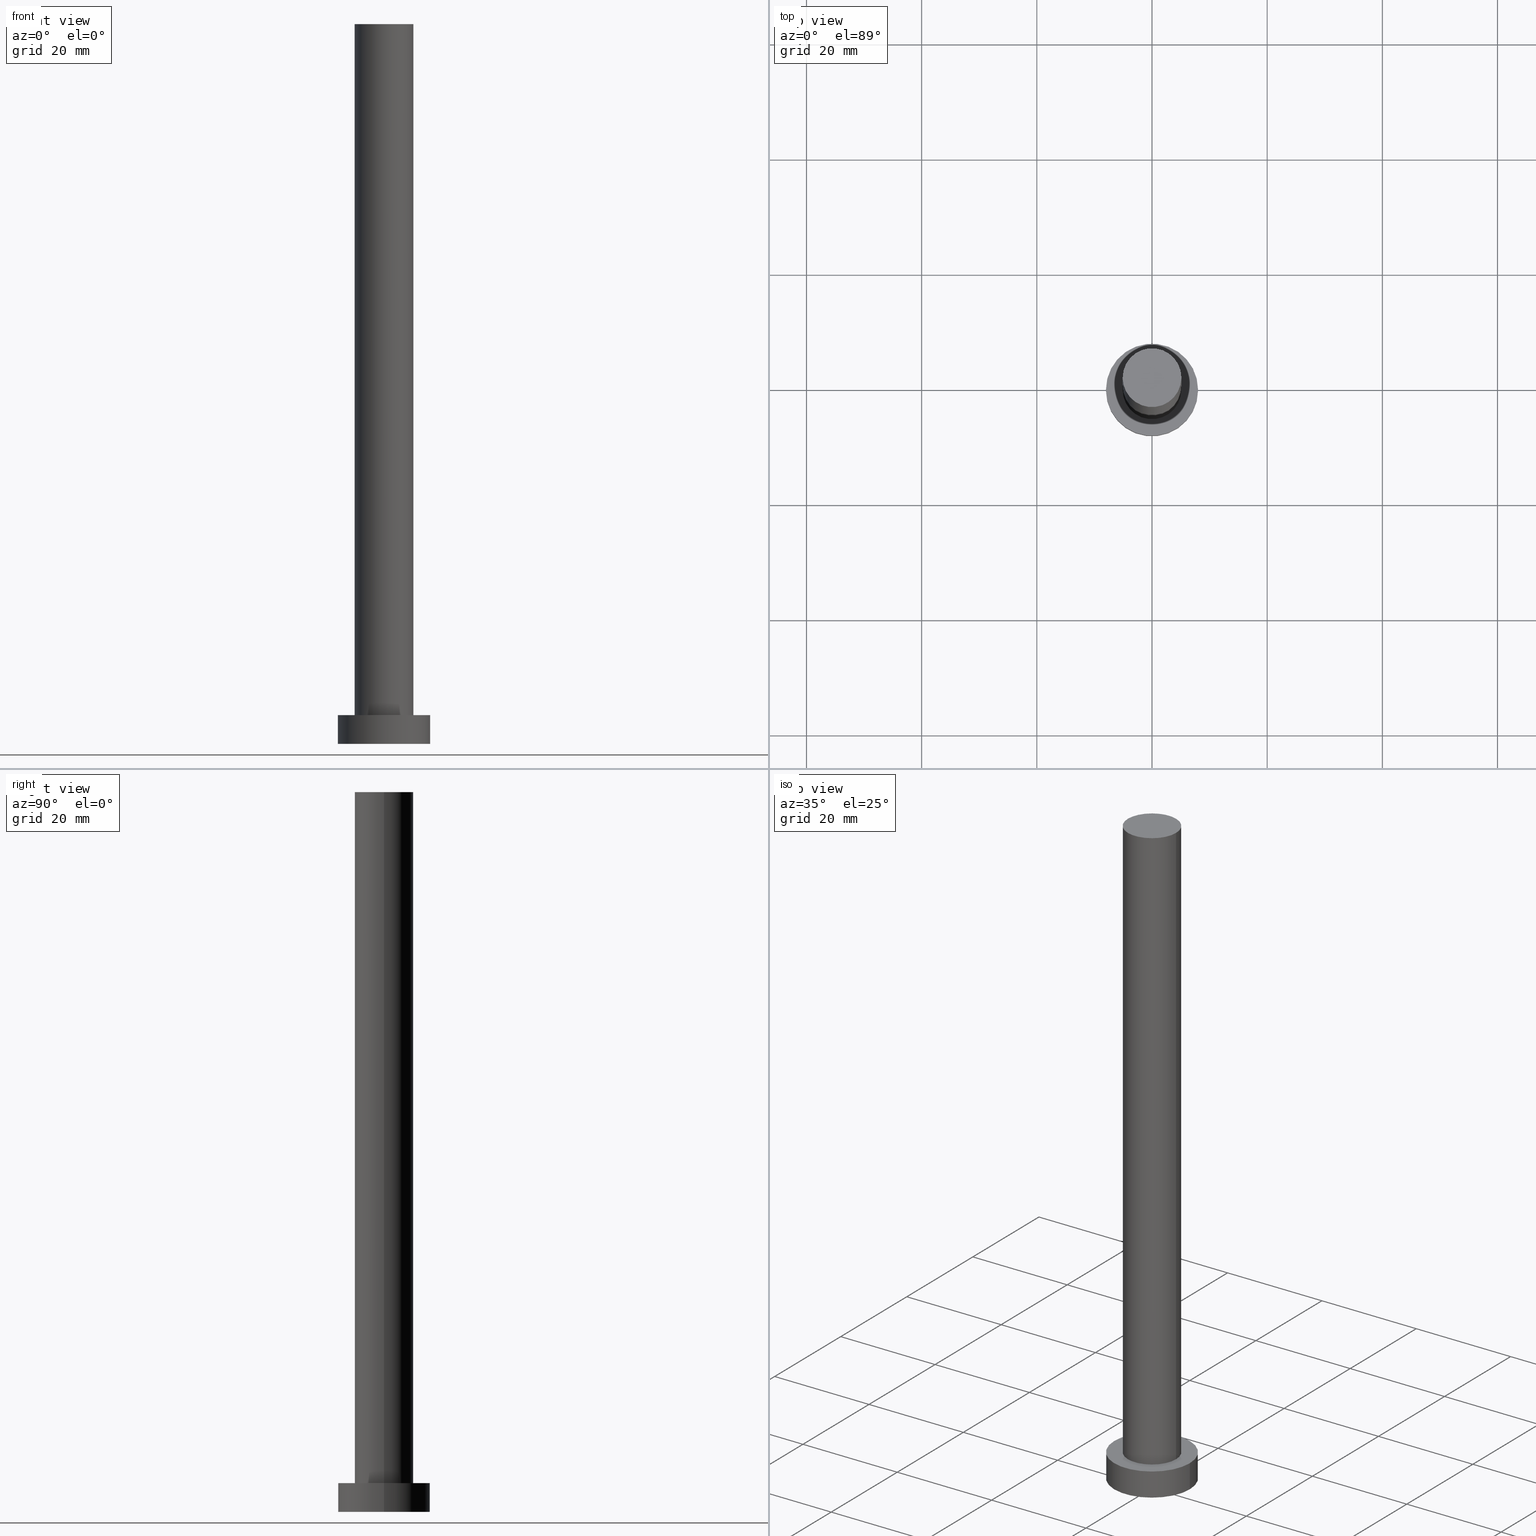
[diagram: canonical four-view strip — front | top / right | iso, engineering-drawing reading convention]
A machine part, canonical four-view strip (front | top / right | iso — engineering-drawing reading convention). The complete STEP part file that produces these views, byte-faithful:
ISO-10303-21;
HEADER;
FILE_DESCRIPTION (( 'STEP AP203' ),
    '1' );
FILE_NAME ('c4af.STEP',
    '2023-02-12T10:59:35',
    ( '' ),
    ( '' ),
    'SwSTEP 2.0',
    'SolidWorks 2019',
    '' );
FILE_SCHEMA (( 'CONFIG_CONTROL_DESIGN' ));
ENDSEC;

DATA;
#1 = SECURITY_CLASSIFICATION_LEVEL ( 'unclassified' ) ;
#2 = ORIENTED_EDGE ( 'NONE', *, *, #114, .T. ) ;
#3 = DIRECTION ( 'NONE',  ( 0.000000000000000000, 0.000000000000000000, 1.000000000000000000 ) ) ;
#4 = FACE_OUTER_BOUND ( 'NONE', #227, .T. ) ;
#5 = CALENDAR_DATE ( 2023, 12, 2 ) ;
#6 = CARTESIAN_POINT ( 'NONE',  ( 0.000000000000000000, 0.000000000000000000, 5.000000000000000000 ) ) ;
#7 = DIRECTION ( 'NONE',  ( -0.000000000000000000, -0.000000000000000000, -1.000000000000000000 ) ) ;
#8 = DIRECTION ( 'NONE',  ( 0.000000000000000000, 0.000000000000000000, 1.000000000000000000 ) ) ;
#9 = APPROVAL ( #168, 'NEUR�EN�' ) ;
#10 = DIRECTION ( 'NONE',  ( 1.000000000000000000, 0.000000000000000000, 0.000000000000000000 ) ) ;
#11 = FACE_BOUND ( 'NONE', #204, .T. ) ;
#12 = CIRCLE ( 'NONE', #103, 5.099999999999999645 ) ;
#13 = APPROVAL_STATUS ( 'not_yet_approved' ) ;
#14 = DATE_TIME_ROLE ( 'creation_date' ) ;
#15 = CARTESIAN_POINT ( 'NONE',  ( 0.000000000000000000, 0.000000000000000000, 5.000000000000000000 ) ) ;
#16 = PERSON_AND_ORGANIZATION ( #46, #248 ) ;
#17 = ORIENTED_EDGE ( 'NONE', *, *, #170, .T. ) ;
#18 = CC_DESIGN_PERSON_AND_ORGANIZATION_ASSIGNMENT ( #55, #217, ( #42 ) ) ;
#19 = DATE_AND_TIME ( #5, #252 ) ;
#20 =( GEOMETRIC_REPRESENTATION_CONTEXT ( 3 ) GLOBAL_UNCERTAINTY_ASSIGNED_CONTEXT ( ( #125 ) ) GLOBAL_UNIT_ASSIGNED_CONTEXT ( ( #235, #52, #112 ) ) REPRESENTATION_CONTEXT ( 'NONE', 'WORKASPACE' ) );
#21 = CARTESIAN_POINT ( 'NONE',  ( -8.000000000000000000, 0.000000000000000000, 0.000000000000000000 ) ) ;
#22 = VERTEX_POINT ( 'NONE', #21 ) ;
#23 = DIRECTION ( 'NONE',  ( 1.000000000000000000, 0.000000000000000000, 0.000000000000000000 ) ) ;
#24 = ADVANCED_FACE ( 'NONE', ( #4 ), #191, .T. ) ;
#25 = APPROVAL_PERSON_ORGANIZATION ( #250, #101, #74 ) ;
#26 = DIRECTION ( 'NONE',  ( -1.000000000000000000, 0.000000000000000000, 0.000000000000000000 ) ) ;
#27 = FACE_OUTER_BOUND ( 'NONE', #184, .T. ) ;
#28 = CC_DESIGN_PERSON_AND_ORGANIZATION_ASSIGNMENT ( #34, #116, ( #226 ) ) ;
#29 = CIRCLE ( 'NONE', #167, 8.000000000000000000 ) ;
#30 = APPLICATION_PROTOCOL_DEFINITION ( 'international standard', 'config_control_design', 1994, #241 ) ;
#31 = DIRECTION ( 'NONE',  ( 0.000000000000000000, 0.000000000000000000, 1.000000000000000000 ) ) ;
#32 = CARTESIAN_POINT ( 'NONE',  ( -8.000000000000000000, 0.000000000000000000, 5.000000000000000000 ) ) ;
#33 = CIRCLE ( 'NONE', #197, 5.099999999999999645 ) ;
#34 = PERSON_AND_ORGANIZATION ( #46, #248 ) ;
#35 = PERSON_AND_ORGANIZATION ( #46, #248 ) ;
#36 = VERTEX_POINT ( 'NONE', #244 ) ;
#37 = VECTOR ( 'NONE', #143, 1000.000000000000000 ) ;
#38 = PERSON_AND_ORGANIZATION ( #46, #248 ) ;
#39 = COORDINATED_UNIVERSAL_TIME_OFFSET ( 1, 0, .AHEAD. ) ;
#40 = VERTEX_POINT ( 'NONE', #89 ) ;
#41 = MANIFOLD_SOLID_BREP ( 'P�idat vysunut�m3', #69 ) ;
#42 = PRODUCT_DEFINITION ( 'NEZN�M�', '', #141, #171 ) ;
#43 = CARTESIAN_POINT ( 'NONE',  ( -5.099999999999999645, 0.000000000000000000, 125.0000000000000000 ) ) ;
#44 = DIRECTION ( 'NONE',  ( -1.000000000000000000, 0.000000000000000000, 0.000000000000000000 ) ) ;
#45 = ORIENTED_EDGE ( 'NONE', *, *, #212, .T. ) ;
#46 = PERSON ( 'NEUR�EN�', 'NEUR�EN�', 'NEUR�EN�', ('NEUR�EN�'), ('NEUR�EN�'), ('NEUR�EN�') ) ;
#47 = VERTEX_POINT ( 'NONE', #247 ) ;
#48 = APPLICATION_CONTEXT ( 'configuration controlled 3d designs of mechanical parts and assemblies' ) ;
#49 = DIRECTION ( 'NONE',  ( 0.000000000000000000, 0.000000000000000000, 1.000000000000000000 ) ) ;
#50 = CYLINDRICAL_SURFACE ( 'NONE', #139, 5.099999999999999645 ) ;
#51 = DIRECTION ( 'NONE',  ( 1.000000000000000000, 0.000000000000000000, 0.000000000000000000 ) ) ;
#52 =( NAMED_UNIT ( * ) PLANE_ANGLE_UNIT ( ) SI_UNIT ( $, .RADIAN. ) );
#53 = DIRECTION ( 'NONE',  ( 0.000000000000000000, 0.000000000000000000, 1.000000000000000000 ) ) ;
#54 = CC_DESIGN_PERSON_AND_ORGANIZATION_ASSIGNMENT ( #16, #81, ( #141 ) ) ;
#55 = PERSON_AND_ORGANIZATION ( #46, #248 ) ;
#56 = AXIS2_PLACEMENT_3D ( 'NONE', #160, #61, #23 ) ;
#57 = VECTOR ( 'NONE', #199, 1000.000000000000000 ) ;
#58 = ORIENTED_EDGE ( 'NONE', *, *, #86, .T. ) ;
#59 = CC_DESIGN_APPROVAL ( #146, ( #42 ) ) ;
#60 = PERSON_AND_ORGANIZATION_ROLE ( 'classification_officer' ) ;
#61 = DIRECTION ( 'NONE',  ( 0.000000000000000000, 0.000000000000000000, 1.000000000000000000 ) ) ;
#62 = ORIENTED_EDGE ( 'NONE', *, *, #80, .T. ) ;
#63 = ORIENTED_EDGE ( 'NONE', *, *, #190, .F. ) ;
#64 = AXIS2_PLACEMENT_3D ( 'NONE', #107, #240, #44 ) ;
#65 = DIRECTION ( 'NONE',  ( 1.000000000000000000, 0.000000000000000000, 0.000000000000000000 ) ) ;
#66 = DIRECTION ( 'NONE',  ( -0.000000000000000000, -0.000000000000000000, -1.000000000000000000 ) ) ;
#67 = FACE_OUTER_BOUND ( 'NONE', #140, .T. ) ;
#68 = DIRECTION ( 'NONE',  ( -1.000000000000000000, 0.000000000000000000, 0.000000000000000000 ) ) ;
#69 = CLOSED_SHELL ( 'NONE', ( #72, #157, #195, #249, #97, #90, #24 ) ) ;
#70 = EDGE_CURVE ( 'NONE', #36, #22, #203, .T. ) ;
#71 = CARTESIAN_POINT ( 'NONE',  ( 8.000000000000000000, 9.797174393178825657E-16, 5.000000000000000000 ) ) ;
#72 = ADVANCED_FACE ( 'NONE', ( #67 ), #50, .T. ) ;
#73 = FACE_OUTER_BOUND ( 'NONE', #220, .T. ) ;
#74 = APPROVAL_ROLE ( '' ) ;
#75 = CC_DESIGN_PERSON_AND_ORGANIZATION_ASSIGNMENT ( #225, #60, ( #243 ) ) ;
#76 = DATE_AND_TIME ( #181, #131 ) ;
#77 = ORIENTED_EDGE ( 'NONE', *, *, #212, .F. ) ;
#78 = DIRECTION ( 'NONE',  ( 1.000000000000000000, 0.000000000000000000, 0.000000000000000000 ) ) ;
#79 = ORIENTED_EDGE ( 'NONE', *, *, #190, .T. ) ;
#80 = EDGE_CURVE ( 'NONE', #239, #47, #29, .T. ) ;
#81 = PERSON_AND_ORGANIZATION_ROLE ( 'design_supplier' ) ;
#82 = VERTEX_POINT ( 'NONE', #132 ) ;
#83 = CYLINDRICAL_SURFACE ( 'NONE', #64, 5.099999999999999645 ) ;
#84 = LINE ( 'NONE', #124, #57 ) ;
#85 = FACE_OUTER_BOUND ( 'NONE', #128, .T. ) ;
#86 = EDGE_CURVE ( 'NONE', #156, #82, #163, .T. ) ;
#87 = ORIENTED_EDGE ( 'NONE', *, *, #142, .F. ) ;
#88 = FACE_OUTER_BOUND ( 'NONE', #208, .T. ) ;
#89 = CARTESIAN_POINT ( 'NONE',  ( 5.099999999999999645, 6.245698675651500839E-16, 125.0000000000000000 ) ) ;
#90 = ADVANCED_FACE ( 'NONE', ( #27 ), #83, .T. ) ;
#91 = CARTESIAN_POINT ( 'NONE',  ( 0.000000000000000000, 0.000000000000000000, 5.000000000000000000 ) ) ;
#92 = CIRCLE ( 'NONE', #178, 8.000000000000000000 ) ;
#93 = DIRECTION ( 'NONE',  ( 1.000000000000000000, 0.000000000000000000, -0.000000000000000000 ) ) ;
#94 = DIRECTION ( 'NONE',  ( 0.000000000000000000, 0.000000000000000000, 1.000000000000000000 ) ) ;
#95 = EDGE_CURVE ( 'NONE', #40, #127, #207, .T. ) ;
#96 = CC_DESIGN_APPROVAL ( #101, ( #141 ) ) ;
#97 = ADVANCED_FACE ( 'NONE', ( #73 ), #216, .F. ) ;
#98 = APPROVAL_ROLE ( '' ) ;
#99 = VECTOR ( 'NONE', #117, 1000.000000000000000 ) ;
#100 = CARTESIAN_POINT ( 'NONE',  ( 5.099999999999999645, 6.245698675651500839E-16, 5.000000000000000000 ) ) ;
#101 = APPROVAL ( #155, 'NEUR�EN�' ) ;
#102 = EDGE_LOOP ( 'NONE', ( #253, #62 ) ) ;
#103 = AXIS2_PLACEMENT_3D ( 'NONE', #233, #94, #78 ) ;
#104 = AXIS2_PLACEMENT_3D ( 'NONE', #206, #66, #192 ) ;
#105 = DATE_TIME_ROLE ( 'classification_date' ) ;
#106 = DIRECTION ( 'NONE',  ( 0.000000000000000000, 0.000000000000000000, 1.000000000000000000 ) ) ;
#107 = CARTESIAN_POINT ( 'NONE',  ( 0.000000000000000000, 0.000000000000000000, 125.0000000000000000 ) ) ;
#108 = AXIS2_PLACEMENT_3D ( 'NONE', #148, #8, #145 ) ;
#109 = PRODUCT_DEFINITION_SHAPE ( 'NONE', 'NONE',  #42 ) ;
#110 = CIRCLE ( 'NONE', #115, 5.099999999999999645 ) ;
#111 = DIRECTION ( 'NONE',  ( 0.000000000000000000, 0.000000000000000000, 1.000000000000000000 ) ) ;
#112 =( NAMED_UNIT ( * ) SI_UNIT ( $, .STERADIAN. ) SOLID_ANGLE_UNIT ( ) );
#113 = CARTESIAN_POINT ( 'NONE',  ( 0.000000000000000000, 0.000000000000000000, 0.000000000000000000 ) ) ;
#114 = EDGE_CURVE ( 'NONE', #156, #40, #12, .T. ) ;
#115 = AXIS2_PLACEMENT_3D ( 'NONE', #198, #31, #153 ) ;
#116 = PERSON_AND_ORGANIZATION_ROLE ( 'design_owner' ) ;
#117 = DIRECTION ( 'NONE',  ( -0.000000000000000000, -0.000000000000000000, -1.000000000000000000 ) ) ;
#118 = PERSON_AND_ORGANIZATION_ROLE ( 'creator' ) ;
#119 = ORIENTED_EDGE ( 'NONE', *, *, #170, .F. ) ;
#120 = COORDINATED_UNIVERSAL_TIME_OFFSET ( 1, 0, .AHEAD. ) ;
#121 = COORDINATED_UNIVERSAL_TIME_OFFSET ( 1, 0, .AHEAD. ) ;
#122 = CC_DESIGN_SECURITY_CLASSIFICATION ( #243, ( #141 ) ) ;
#123 = ORIENTED_EDGE ( 'NONE', *, *, #254, .T. ) ;
#124 = CARTESIAN_POINT ( 'NONE',  ( 8.000000000000000000, 9.797174393178825657E-16, 5.000000000000000000 ) ) ;
#125 = UNCERTAINTY_MEASURE_WITH_UNIT (LENGTH_MEASURE( 1.000000000000000082E-05 ), #235, 'distance_accuracy_value', 'NONE');
#126 = COORDINATED_UNIVERSAL_TIME_OFFSET ( 1, 0, .AHEAD. ) ;
#127 = VERTEX_POINT ( 'NONE', #100 ) ;
#128 = EDGE_LOOP ( 'NONE', ( #169, #87, #144, #218 ) ) ;
#129 = ADVANCED_BREP_SHAPE_REPRESENTATION ( 'c4af', ( #41, #175 ), #20 ) ;
#130 = CARTESIAN_POINT ( 'NONE',  ( 0.000000000000000000, 0.000000000000000000, 125.0000000000000000 ) ) ;
#131 = LOCAL_TIME ( 11, 59, 34.00000000000000000, #120 ) ;
#132 = CARTESIAN_POINT ( 'NONE',  ( -5.099999999999999645, 0.000000000000000000, 5.000000000000000000 ) ) ;
#133 = APPROVAL_PERSON_ORGANIZATION ( #223, #9, #164 ) ;
#134 = DIRECTION ( 'NONE',  ( 1.000000000000000000, 0.000000000000000000, 0.000000000000000000 ) ) ;
#135 = LINE ( 'NONE', #32, #99 ) ;
#136 = PLANE ( 'NONE',  #205 ) ;
#137 = APPROVAL_DATE_TIME ( #236, #101 ) ;
#138 = EDGE_CURVE ( 'NONE', #22, #36, #229, .T. ) ;
#139 = AXIS2_PLACEMENT_3D ( 'NONE', #130, #211, #26 ) ;
#140 = EDGE_LOOP ( 'NONE', ( #119, #224, #79, #172 ) ) ;
#141 = PRODUCT_DEFINITION_FORMATION_WITH_SPECIFIED_SOURCE ( 'LIBOVOLN�', '', #226, .NOT_KNOWN. ) ;
#142 = EDGE_CURVE ( 'NONE', #47, #239, #92, .T. ) ;
#143 = DIRECTION ( 'NONE',  ( -0.000000000000000000, -0.000000000000000000, -1.000000000000000000 ) ) ;
#144 = ORIENTED_EDGE ( 'NONE', *, *, #234, .T. ) ;
#145 = DIRECTION ( 'NONE',  ( 1.000000000000000000, 0.000000000000000000, -0.000000000000000000 ) ) ;
#146 = APPROVAL ( #13, 'NEUR�EN�' ) ;
#147 = CYLINDRICAL_SURFACE ( 'NONE', #104, 8.000000000000000000 ) ;
#148 = CARTESIAN_POINT ( 'NONE',  ( 0.000000000000000000, 0.000000000000000000, 125.0000000000000000 ) ) ;
#149 = SHAPE_DEFINITION_REPRESENTATION ( #109, #129 ) ;
#150 = CARTESIAN_POINT ( 'NONE',  ( 0.000000000000000000, 0.000000000000000000, 0.000000000000000000 ) ) ;
#151 = AXIS2_PLACEMENT_3D ( 'NONE', #150, #111, #242 ) ;
#152 = CARTESIAN_POINT ( 'NONE',  ( 0.000000000000000000, 0.000000000000000000, 0.000000000000000000 ) ) ;
#153 = DIRECTION ( 'NONE',  ( 1.000000000000000000, 0.000000000000000000, 0.000000000000000000 ) ) ;
#154 = CALENDAR_DATE ( 2023, 12, 2 ) ;
#155 = APPROVAL_STATUS ( 'not_yet_approved' ) ;
#156 = VERTEX_POINT ( 'NONE', #43 ) ;
#157 = ADVANCED_FACE ( 'NONE', ( #88 ), #147, .T. ) ;
#158 = COORDINATED_UNIVERSAL_TIME_OFFSET ( 1, 0, .AHEAD. ) ;
#159 = APPROVAL_DATE_TIME ( #76, #146 ) ;
#160 = CARTESIAN_POINT ( 'NONE',  ( 0.000000000000000000, 0.000000000000000000, 0.000000000000000000 ) ) ;
#161 = AXIS2_PLACEMENT_3D ( 'NONE', #91, #246, #68 ) ;
#162 = ORIENTED_EDGE ( 'NONE', *, *, #70, .F. ) ;
#163 = LINE ( 'NONE', #213, #37 ) ;
#164 = APPROVAL_ROLE ( '' ) ;
#165 = CYLINDRICAL_SURFACE ( 'NONE', #161, 8.000000000000000000 ) ;
#166 = ORIENTED_EDGE ( 'NONE', *, *, #138, .F. ) ;
#167 = AXIS2_PLACEMENT_3D ( 'NONE', #194, #232, #51 ) ;
#168 = APPROVAL_STATUS ( 'not_yet_approved' ) ;
#169 = ORIENTED_EDGE ( 'NONE', *, *, #254, .F. ) ;
#170 = EDGE_CURVE ( 'NONE', #40, #156, #230, .T. ) ;
#171 = DESIGN_CONTEXT ( 'detailed design', #48, 'design' ) ;
#172 = ORIENTED_EDGE ( 'NONE', *, *, #86, .F. ) ;
#173 = CC_DESIGN_PERSON_AND_ORGANIZATION_ASSIGNMENT ( #35, #118, ( #141 ) ) ;
#174 = VECTOR ( 'NONE', #7, 1000.000000000000000 ) ;
#175 = AXIS2_PLACEMENT_3D ( 'NONE', #152, #53, #134 ) ;
#176 = FACE_OUTER_BOUND ( 'NONE', #102, .T. ) ;
#177 = CALENDAR_DATE ( 2023, 12, 2 ) ;
#178 = AXIS2_PLACEMENT_3D ( 'NONE', #189, #106, #65 ) ;
#179 = ORIENTED_EDGE ( 'NONE', *, *, #80, .F. ) ;
#180 = LOCAL_TIME ( 11, 59, 34.00000000000000000, #158 ) ;
#181 = CALENDAR_DATE ( 2023, 12, 2 ) ;
#182 = ORIENTED_EDGE ( 'NONE', *, *, #95, .F. ) ;
#183 = CC_DESIGN_DATE_AND_TIME_ASSIGNMENT ( #19, #105, ( #243 ) ) ;
#184 = EDGE_LOOP ( 'NONE', ( #182, #237, #58, #45 ) ) ;
#185 = CC_DESIGN_APPROVAL ( #9, ( #243 ) ) ;
#186 = DIRECTION ( 'NONE',  ( 1.000000000000000000, 0.000000000000000000, 0.000000000000000000 ) ) ;
#187 = CARTESIAN_POINT ( 'NONE',  ( 5.099999999999999645, 6.245698675651500839E-16, 125.0000000000000000 ) ) ;
#188 = CALENDAR_DATE ( 2023, 12, 2 ) ;
#189 = CARTESIAN_POINT ( 'NONE',  ( 0.000000000000000000, 0.000000000000000000, 5.000000000000000000 ) ) ;
#190 = EDGE_CURVE ( 'NONE', #127, #82, #33, .T. ) ;
#191 = PLANE ( 'NONE',  #108 ) ;
#192 = DIRECTION ( 'NONE',  ( -1.000000000000000000, 0.000000000000000000, 0.000000000000000000 ) ) ;
#193 = ORIENTED_EDGE ( 'NONE', *, *, #70, .T. ) ;
#194 = CARTESIAN_POINT ( 'NONE',  ( 0.000000000000000000, 0.000000000000000000, 5.000000000000000000 ) ) ;
#195 = ADVANCED_FACE ( 'NONE', ( #85 ), #165, .T. ) ;
#196 = DIRECTION ( 'NONE',  ( 0.000000000000000000, 0.000000000000000000, 1.000000000000000000 ) ) ;
#197 = AXIS2_PLACEMENT_3D ( 'NONE', #6, #49, #10 ) ;
#198 = CARTESIAN_POINT ( 'NONE',  ( 0.000000000000000000, 0.000000000000000000, 5.000000000000000000 ) ) ;
#199 = DIRECTION ( 'NONE',  ( -0.000000000000000000, -0.000000000000000000, -1.000000000000000000 ) ) ;
#200 = DATE_AND_TIME ( #177, #210 ) ;
#201 = PRODUCT_RELATED_PRODUCT_CATEGORY ( 'detail', '', ( #226 ) ) ;
#202 = ORIENTED_EDGE ( 'NONE', *, *, #234, .F. ) ;
#203 = CIRCLE ( 'NONE', #151, 8.000000000000000000 ) ;
#204 = EDGE_LOOP ( 'NONE', ( #77, #63 ) ) ;
#205 = AXIS2_PLACEMENT_3D ( 'NONE', #15, #251, #219 ) ;
#206 = CARTESIAN_POINT ( 'NONE',  ( 0.000000000000000000, 0.000000000000000000, 5.000000000000000000 ) ) ;
#207 = LINE ( 'NONE', #187, #174 ) ;
#208 = EDGE_LOOP ( 'NONE', ( #179, #123, #193, #202 ) ) ;
#209 = DATE_AND_TIME ( #188, #231 ) ;
#210 = LOCAL_TIME ( 11, 59, 34.00000000000000000, #39 ) ;
#211 = DIRECTION ( 'NONE',  ( -0.000000000000000000, -0.000000000000000000, -1.000000000000000000 ) ) ;
#212 = EDGE_CURVE ( 'NONE', #82, #127, #110, .T. ) ;
#213 = CARTESIAN_POINT ( 'NONE',  ( -5.099999999999999645, 0.000000000000000000, 125.0000000000000000 ) ) ;
#214 = AXIS2_PLACEMENT_3D ( 'NONE', #228, #3, #186 ) ;
#215 = MECHANICAL_CONTEXT ( 'NONE', #241, 'mechanical' ) ;
#216 = PLANE ( 'NONE',  #238 ) ;
#217 = PERSON_AND_ORGANIZATION_ROLE ( 'creator' ) ;
#218 = ORIENTED_EDGE ( 'NONE', *, *, #138, .T. ) ;
#219 = DIRECTION ( 'NONE',  ( 1.000000000000000000, 0.000000000000000000, -0.000000000000000000 ) ) ;
#220 = EDGE_LOOP ( 'NONE', ( #166, #162 ) ) ;
#221 = APPROVAL_PERSON_ORGANIZATION ( #38, #146, #98 ) ;
#222 = APPROVAL_DATE_TIME ( #209, #9 ) ;
#223 = PERSON_AND_ORGANIZATION ( #46, #248 ) ;
#224 = ORIENTED_EDGE ( 'NONE', *, *, #95, .T. ) ;
#225 = PERSON_AND_ORGANIZATION ( #46, #248 ) ;
#226 = PRODUCT ( 'c4af', 'c4af', '', ( #215 ) ) ;
#227 = EDGE_LOOP ( 'NONE', ( #2, #17 ) ) ;
#228 = CARTESIAN_POINT ( 'NONE',  ( 0.000000000000000000, 0.000000000000000000, 125.0000000000000000 ) ) ;
#229 = CIRCLE ( 'NONE', #56, 8.000000000000000000 ) ;
#230 = CIRCLE ( 'NONE', #214, 5.099999999999999645 ) ;
#231 = LOCAL_TIME ( 11, 59, 34.00000000000000000, #121 ) ;
#232 = DIRECTION ( 'NONE',  ( 0.000000000000000000, 0.000000000000000000, 1.000000000000000000 ) ) ;
#233 = CARTESIAN_POINT ( 'NONE',  ( 0.000000000000000000, 0.000000000000000000, 125.0000000000000000 ) ) ;
#234 = EDGE_CURVE ( 'NONE', #47, #22, #135, .T. ) ;
#235 =( LENGTH_UNIT ( ) NAMED_UNIT ( * ) SI_UNIT ( .MILLI., .METRE. ) );
#236 = DATE_AND_TIME ( #154, #180 ) ;
#237 = ORIENTED_EDGE ( 'NONE', *, *, #114, .F. ) ;
#238 = AXIS2_PLACEMENT_3D ( 'NONE', #113, #196, #93 ) ;
#239 = VERTEX_POINT ( 'NONE', #71 ) ;
#240 = DIRECTION ( 'NONE',  ( -0.000000000000000000, -0.000000000000000000, -1.000000000000000000 ) ) ;
#241 = APPLICATION_CONTEXT ( 'configuration controlled 3d designs of mechanical parts and assemblies' ) ;
#242 = DIRECTION ( 'NONE',  ( 1.000000000000000000, 0.000000000000000000, 0.000000000000000000 ) ) ;
#243 = SECURITY_CLASSIFICATION ( '', '', #1 ) ;
#244 = CARTESIAN_POINT ( 'NONE',  ( 8.000000000000000000, 9.797174393178825657E-16, 0.000000000000000000 ) ) ;
#245 = CC_DESIGN_DATE_AND_TIME_ASSIGNMENT ( #200, #14, ( #42 ) ) ;
#246 = DIRECTION ( 'NONE',  ( -0.000000000000000000, -0.000000000000000000, -1.000000000000000000 ) ) ;
#247 = CARTESIAN_POINT ( 'NONE',  ( -8.000000000000000000, 0.000000000000000000, 5.000000000000000000 ) ) ;
#248 = ORGANIZATION ( 'NEUR�EN�', 'NEUR�EN�', '' ) ;
#249 = ADVANCED_FACE ( 'NONE', ( #11, #176 ), #136, .T. ) ;
#250 = PERSON_AND_ORGANIZATION ( #46, #248 ) ;
#251 = DIRECTION ( 'NONE',  ( 0.000000000000000000, 0.000000000000000000, 1.000000000000000000 ) ) ;
#252 = LOCAL_TIME ( 11, 59, 34.00000000000000000, #126 ) ;
#253 = ORIENTED_EDGE ( 'NONE', *, *, #142, .T. ) ;
#254 = EDGE_CURVE ( 'NONE', #239, #36, #84, .T. ) ;
#255 = APPLICATION_PROTOCOL_DEFINITION ( 'international standard', 'config_control_design', 1994, #48 ) ;
ENDSEC;
END-ISO-10303-21;
